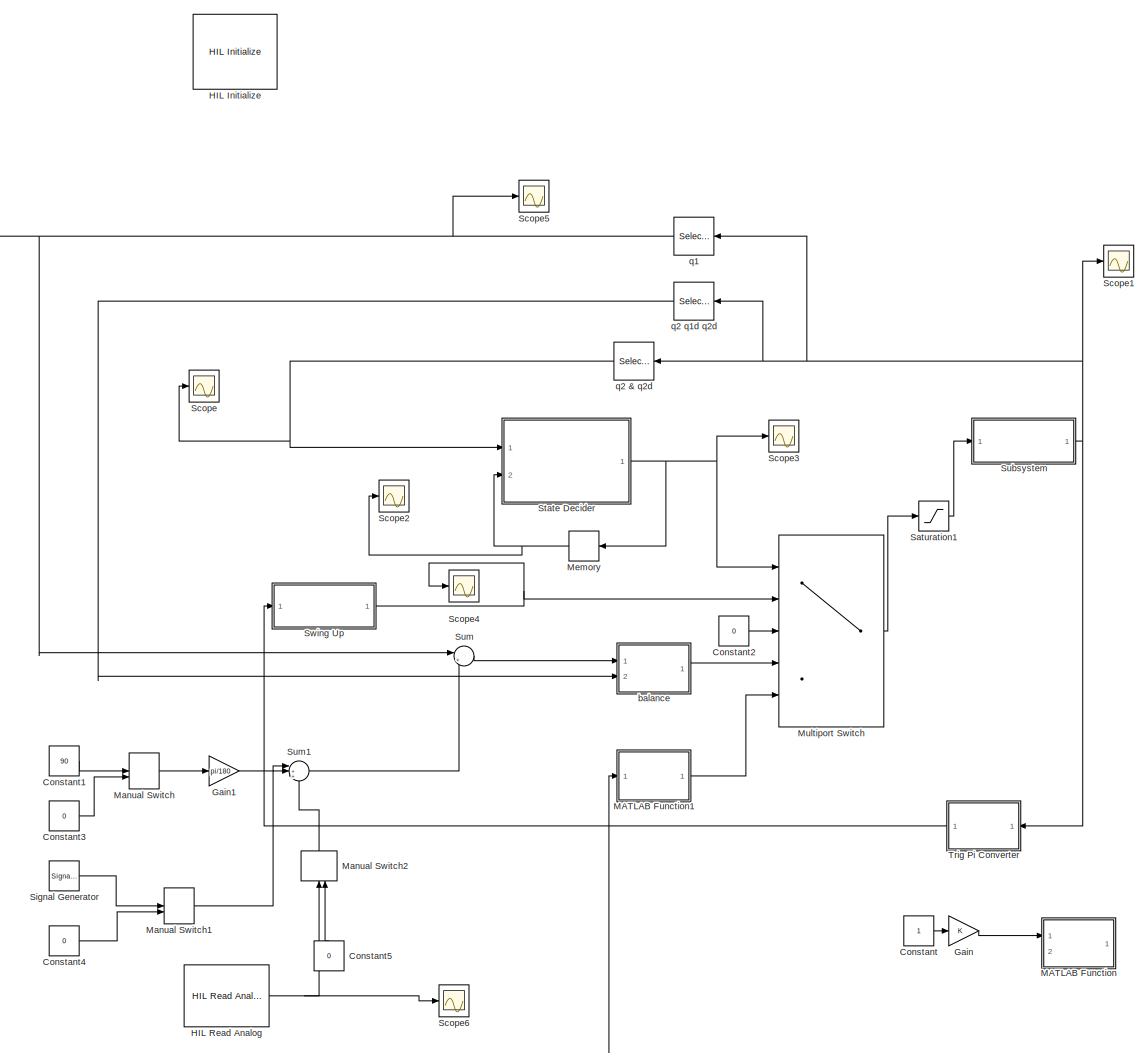
[diagram: root canvas - part 1/1, most of the canvas]
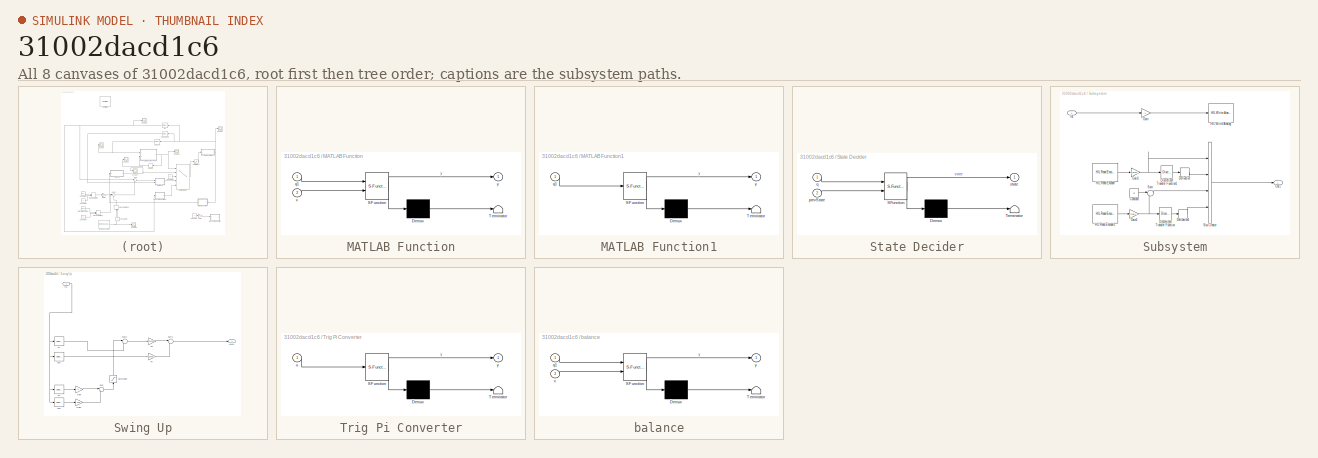
[diagram: thumbnail index - all 8 canvases of the model, root first then tree order]
MODEL slx_31002dacd1c6
KIND model
BLOCK [Constant] Constant
  Commented = on
BLOCK [Constant] Constant1
  Value = 90
BLOCK [Constant] Constant2
  Value = 0
BLOCK [Constant] Constant3
  Value = 0
BLOCK [Constant] Constant4
  Value = 0
BLOCK [Constant] Constant5
  Value = 0
BLOCK [Gain] Gain
  Commented = on
  OutDataTypeStr = Inherit: Inherit via internal rule
  ParamDataTypeStr = Inherit: Inherit via internal rule
  SaturateOnIntegerOverflow = off
BLOCK [Gain] Gain1
  Gain = pi/180
  OutDataTypeStr = Inherit: Inherit via internal rule
  ParamDataTypeStr = Inherit: Inherit via internal rule
  SaturateOnIntegerOverflow = off
BLOCK [Reference] HIL Initialize  REF=quarc_library/Data Acquisition/Generic/Configuration/HIL Initialize
  AttributesFormatString = %<object_name> (%<board_type>-%<board_number>)
  Ports = []
  Priority = -99
  SourceBlock = quarc_library/Data Acquisition/Generic/Configuration/HIL Initialize
  SourceType = HIL Initialize
  UserDataPersistent = on
  active = off
  analog_input_channels = [0:1]
  analog_input_maximums = 10
  analog_input_minimums = -10
  analog_output_channels = [0:1]
  analog_output_maximums = 10
  analog_output_minimums = -10
  board_number = 0
  board_options = d0=digital;d1=digital;led=auto;update_rate=normal;decimation=1
  board_type = q2_usb
  clock_modes = []
  digital_input_channels = []
  digital_output_channels = []
  digital_output_configuration = []
  encoder_channels = [0:1]
  encoder_filter_frequency = []
  exclusive = off
  final_analog_outputs = [0]
  final_digital_outputs = [1]
  final_other_outputs = []
  final_pwm_outputs = [0]
  hardware_clocks = [0]
  initial_analog_outputs = [0]
  initial_clock_frequencies = []
  initial_digital_outputs = [1]
  initial_encoder_counts = [0]
  initial_other_outputs = []
  initial_pwm_outputs = [0]
  object_name = HIL-1
  other_output_channels = []
  pwm_alignment = []
  pwm_channels = []
  pwm_configuration = []
  pwm_frequency = 1/0.020
  pwm_leading_deadband = []
  pwm_modes = [0]
  pwm_polarity = []
  pwm_trailing_deadband = []
  quadrature = [4]
  set_analog_input_params_at_start = on
  set_analog_input_params_at_switch_in = off
  set_analog_output_params_at_start = on
  set_analog_output_params_at_switch_in = off
  set_analog_outputs_at_start = on
  set_analog_outputs_at_switch_in = off
  set_analog_outputs_at_switch_out = off
  set_analog_outputs_at_terminate = on
  set_analog_outputs_on_watchdog = off
  set_clock_frequencies_at_start = off
  set_clock_frequencies_at_switch_in = off
  set_clock_params_at_start = off
  set_clock_params_at_switch_in = off
  set_digital_output_params_at_start = off
  set_digital_output_params_at_switch_in = off
  set_digital_outputs_at_start = on
  set_digital_outputs_at_switch_in = off
  set_digital_outputs_at_switch_out = off
  set_digital_outputs_at_terminate = on
  set_digital_outputs_on_watchdog = off
  set_encoder_counts_at_start = on
  set_encoder_counts_at_switch_in = off
  set_encoder_params_at_start = on
  set_encoder_params_at_switch_in = off
  set_other_outputs_at_start = off
  set_other_outputs_at_switch_in = off
  set_other_outputs_at_switch_out = off
  set_other_outputs_at_terminate = off
  set_other_outputs_on_watchdog = off
  set_pwm_outputs_at_start = on
  set_pwm_outputs_at_switch_in = off
  set_pwm_outputs_at_switch_out = off
  set_pwm_outputs_at_terminate = on
  set_pwm_outputs_on_watchdog = off
  set_pwm_params_at_start = on
  set_pwm_params_at_switch_in = off
  watchdog_analog_outputs = 0
  watchdog_digital_outputs = [1]
  watchdog_other_outputs = []
  watchdog_pwm_outputs = [0]
BLOCK [Reference] HIL Read Analog  REF=quarc_library/Data Acquisition/Generic/Immediate I//O/HIL Read Analog
  AttributesFormatString = (%<object_name>)
  Ports = [0, 1]
  SourceBlock = quarc_library/Data Acquisition/Generic/Immediate I//O/HIL Read Analog
  SourceType = HIL Read Analog
  UserDataPersistent = on
  active = on
  channels = 0
  object_name = HIL-1
  sample_time = qc_get_step_size
  vector_output = off
BLOCK [SubSystem] MATLAB Function
  Commented = on
  ErrorFcn = Stateflow.Translate.translate
  FunctionWithSeparateData = off
  MaskHideContents = off
  MinAlgLoopOccurrences = off
  Opaque = off
  PermitHierarchicalResolution = ExplicitOnly
  Ports = [2, 1]
  PropExecContextOutsideSubsystem = off
  RTWSystemCode = Auto
  RequestExecContextInheritance = off
  SFBlockType = MATLAB Function
  TreatAsAtomicUnit = on
BLOCK [Demux] MATLAB Function/ Demux 
  Outputs = 1
  Ports = [1, 1]
BLOCK [S-Function] MATLAB Function/ SFunction 
  EnableBusSupport = on
  FunctionName = sf_sfun
  PortCounts = [2 2]
  Ports = [2, 2]
  Tag = Stateflow S-Function balanceActual 3
BLOCK [Terminator] MATLAB Function/ Terminator 
BLOCK [Inport] MATLAB Function/q1
  IconDisplay = Port number
BLOCK [Inport] MATLAB Function/x
  IconDisplay = Port number
  Port = 2
BLOCK [Outport] MATLAB Function/y
  IconDisplay = Port number
BLOCK [SubSystem] MATLAB Function1
  ErrorFcn = Stateflow.Translate.translate
  FunctionWithSeparateData = off
  MaskHideContents = off
  MinAlgLoopOccurrences = off
  Opaque = off
  PermitHierarchicalResolution = ExplicitOnly
  Ports = [1, 1]
  PropExecContextOutsideSubsystem = off
  RTWSystemCode = Auto
  RequestExecContextInheritance = off
  SFBlockType = MATLAB Function
  TreatAsAtomicUnit = on
BLOCK [Demux] MATLAB Function1/ Demux 
  Outputs = 1
  Ports = [1, 1]
BLOCK [S-Function] MATLAB Function1/ SFunction 
  EnableBusSupport = on
  FunctionName = sf_sfun
  PortCounts = [1 2]
  Ports = [1, 2]
  Tag = Stateflow S-Function balanceActual 5
BLOCK [Terminator] MATLAB Function1/ Terminator 
BLOCK [Inport] MATLAB Function1/q1
  IconDisplay = Port number
BLOCK [Outport] MATLAB Function1/y
  IconDisplay = Port number
BLOCK [ManualSwitch] Manual Switch
  CurrentSetting = 0
BLOCK [ManualSwitch] Manual Switch1
  CurrentSetting = 0
BLOCK [ManualSwitch] Manual Switch2
  CurrentSetting = 0
BLOCK [Memory] Memory
  X0 = 1
BLOCK [MultiPortSwitch] Multiport Switch
  InputSameDT = off
  Inputs = 4
  Ports = [5, 1]
  SaturateOnIntegerOverflow = off
BLOCK [Saturate] Saturation1
  InputPortMap = u0
  LowerLimit = -10
  Ports = [1, 1]
  UpperLimit = 10
BLOCK [Scope] Scope
  DataFormat = StructureWithTime
  Floating = off
  NumInputPorts = 1
  Ports = [1]
  SampleTime = 0
  SaveName = ScopeData1
  ShowLegends = off
  YMax = 9.5
  YMin = -0.5
BLOCK [Scope] Scope1
  DataFormat = StructureWithTime
  Floating = off
  NumInputPorts = 1
  Ports = [1]
  SampleTime = 0
  ShowLegends = off
  YMax = 0.7
  YMin = -0.6
BLOCK [Scope] Scope2
  DataFormat = StructureWithTime
  Floating = off
  MaxDataPoints = 10000
  NumInputPorts = 1
  Ports = [1]
  SampleTime = 0
  SaveName = ScopeData2
  ShowLegends = off
  ZoomMode = yonly
BLOCK [Scope] Scope3
  DataFormat = StructureWithTime
  Floating = off
  MaxDataPoints = 10000
  NumInputPorts = 1
  Ports = [1]
  SampleTime = 0
  SaveName = ScopeData3
  ShowLegends = off
  ZoomMode = yonly
BLOCK [Scope] Scope4
  DataFormat = StructureWithTime
  Floating = off
  MaxDataPoints = 10000
  NumInputPorts = 1
  Ports = [1]
  SampleTime = 0
  SaveName = ScopeData4
  ShowLegends = off
  ZoomMode = yonly
BLOCK [Scope] Scope5
  DataFormat = StructureWithTime
  Floating = off
  NumInputPorts = 1
  Ports = [1]
  SampleTime = 0
  SaveName = ScopeData5
  ShowLegends = off
  YMax = 9.5
  YMin = -0.5
BLOCK [Scope] Scope6
  DataFormat = StructureWithTime
  Floating = off
  NumInputPorts = 1
  Ports = [1]
  SampleTime = 0
  SaveName = ScopeData6
  ShowLegends = off
BLOCK [SignalGenerator] Signal Generator
  Amplitude = 50
  Frequency = 0.1
  Ports = [0, 1]
BLOCK [SubSystem] State Decider
  ErrorFcn = Stateflow.Translate.translate
  FunctionWithSeparateData = off
  MaskHideContents = off
  MinAlgLoopOccurrences = off
  Opaque = off
  PermitHierarchicalResolution = ExplicitOnly
  Ports = [2, 1]
  PropExecContextOutsideSubsystem = off
  RTWSystemCode = Auto
  RequestExecContextInheritance = off
  SFBlockType = MATLAB Function
  TreatAsAtomicUnit = on
BLOCK [Demux] State Decider/ Demux 
  Outputs = 1
  Ports = [1, 1]
BLOCK [S-Function] State Decider/ SFunction 
  EnableBusSupport = on
  FunctionName = sf_sfun
  PortCounts = [2 2]
  Ports = [2, 2]
  Tag = Stateflow S-Function balanceActual 2
BLOCK [Terminator] State Decider/ Terminator 
BLOCK [Inport] State Decider/prevState
  IconDisplay = Port number
  Port = 2
BLOCK [Inport] State Decider/q
  IconDisplay = Port number
BLOCK [Outport] State Decider/state
  IconDisplay = Port number
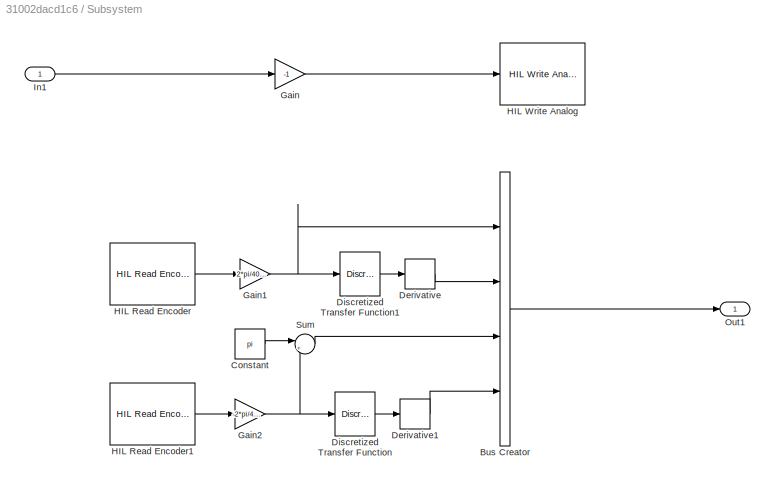
BLOCK [SubSystem] Subsystem
  FunctionWithSeparateData = off
  MaskHideContents = off
  MinAlgLoopOccurrences = off
  Opaque = off
  Ports = [1, 1]
  PropExecContextOutsideSubsystem = off
  RTWSystemCode = Auto
  RequestExecContextInheritance = off
BLOCK [BusCreator] Subsystem/Bus Creator
  DisplayOption = bar
  Ports = [4, 1]
BLOCK [Constant] Subsystem/Constant
  Value = pi
BLOCK [Derivative] Subsystem/Derivative
BLOCK [Derivative] Subsystem/Derivative1
BLOCK [Reference] Subsystem/Discretized Transfer Function  REF=quarc_library/Discrete/Discretized
Transfer Function
  Ports = [1, 1]
  SourceBlock = quarc_library/Discrete/Discretized\nTransfer Function
  SourceType = Discretized Transfer Function
  Ts = qc_get_step_size
  den = [1 100]
  method = tustin
  num = 100
BLOCK [Reference] Subsystem/Discretized Transfer Function1  REF=quarc_library/Discrete/Discretized
Transfer Function
  Ports = [1, 1]
  SourceBlock = quarc_library/Discrete/Discretized\nTransfer Function
  SourceType = Discretized Transfer Function
  Ts = qc_get_step_size
  den = [1 100]
  method = tustin
  num = 100
BLOCK [Gain] Subsystem/Gain
  Gain = -1
  OutDataTypeStr = Inherit: Inherit via internal rule
  ParamDataTypeStr = Inherit: Inherit via internal rule
  SaturateOnIntegerOverflow = off
BLOCK [Gain] Subsystem/Gain1
  Gain = 2*pi/4096
  OutDataTypeStr = Inherit: Inherit via internal rule
  ParamDataTypeStr = Inherit: Inherit via internal rule
  ParamMax = [512]
  ParamMin = [-512]
  SaturateOnIntegerOverflow = off
BLOCK [Gain] Subsystem/Gain2
  Gain = -2*pi/4096
  OutDataTypeStr = Inherit: Inherit via internal rule
  ParamDataTypeStr = Inherit: Inherit via internal rule
  ParamMax = [512]
  ParamMin = [-512]
  SaturateOnIntegerOverflow = off
BLOCK [Reference] Subsystem/HIL Read Encoder  REF=quarc_library/Data Acquisition/Generic/Immediate I//O/HIL Read Encoder
  AttributesFormatString = (%<object_name>)
  Ports = [0, 1]
  SourceBlock = quarc_library/Data Acquisition/Generic/Immediate I//O/HIL Read Encoder
  SourceType = HIL Read Encoder
  UserDataPersistent = on
  active = on
  channels = 0
  data_type = double
  data_type_mode = Inherit via back propagation
  object_name = HIL-1
  sample_time = qc_get_step_size
  vector_output = off
BLOCK [Reference] Subsystem/HIL Read Encoder1  REF=quarc_library/Data Acquisition/Generic/Immediate I//O/HIL Read Encoder
  AttributesFormatString = (%<object_name>)
  Ports = [0, 1]
  SourceBlock = quarc_library/Data Acquisition/Generic/Immediate I//O/HIL Read Encoder
  SourceType = HIL Read Encoder
  UserDataPersistent = on
  active = on
  channels = 1
  data_type = double
  data_type_mode = Inherit via back propagation
  object_name = HIL-1
  sample_time = qc_get_step_size
  vector_output = off
BLOCK [Reference] Subsystem/HIL Write Analog  REF=quarc_library/Data Acquisition/Generic/Immediate I//O/HIL Write Analog
  AttributesFormatString = (%<object_name>)
  Ports = [1]
  SourceBlock = quarc_library/Data Acquisition/Generic/Immediate I//O/HIL Write Analog
  SourceType = HIL Write Analog
  UserDataPersistent = on
  active = off
  channels = 0
  object_name = HIL-1
  sample_time = -1
  vector_input = off
BLOCK [Inport] Subsystem/In1
  IconDisplay = Port number
BLOCK [Outport] Subsystem/Out1
  IconDisplay = Port number
BLOCK [Sum] Subsystem/Sum
  IconShape = round
  InputSameDT = off
  Inputs = |++
  OutDataTypeStr = Inherit: Inherit via internal rule
  Ports = [2, 1]
  SaturateOnIntegerOverflow = off
BLOCK [Sum] Sum
  IconShape = round
  InputSameDT = off
  Inputs = |+-
  OutDataTypeStr = Inherit: Inherit via internal rule
  Ports = [2, 1]
  SaturateOnIntegerOverflow = off
BLOCK [Sum] Sum1
  IconShape = round
  InputSameDT = off
  Inputs = |+++
  OutDataTypeStr = Inherit: Inherit via internal rule
  Ports = [3, 1]
  SaturateOnIntegerOverflow = off
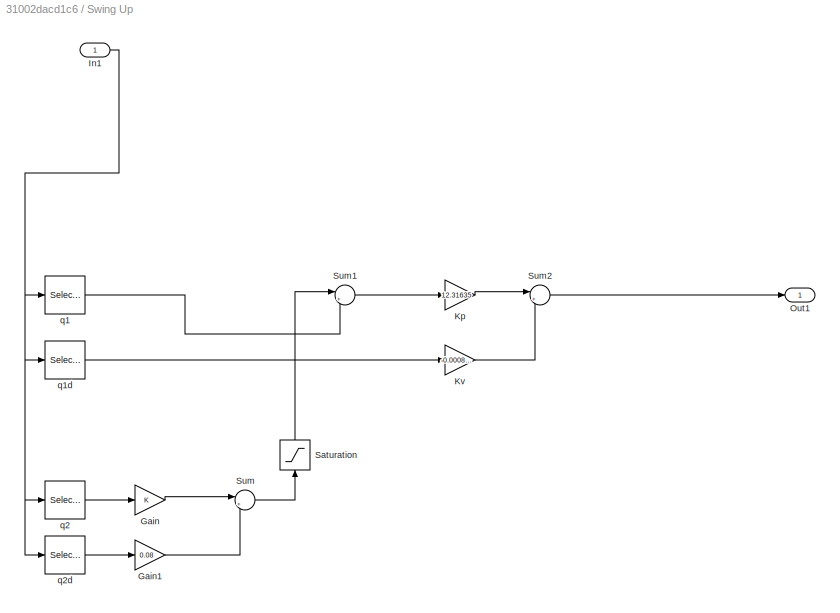
BLOCK [SubSystem] Swing Up
  FunctionWithSeparateData = off
  MaskHideContents = off
  MinAlgLoopOccurrences = off
  Opaque = off
  Ports = [1, 1]
  PropExecContextOutsideSubsystem = off
  RTWSystemCode = Auto
  RequestExecContextInheritance = off
BLOCK [Gain] Swing Up/Gain
  OutDataTypeStr = Inherit: Inherit via internal rule
  ParamDataTypeStr = Inherit: Inherit via internal rule
  SaturateOnIntegerOverflow = off
BLOCK [Gain] Swing Up/Gain1
  Gain = 0.08
  OutDataTypeStr = Inherit: Inherit via internal rule
  ParamDataTypeStr = Inherit: Inherit via internal rule
  SaturateOnIntegerOverflow = off
BLOCK [Inport] Swing Up/In1
  IconDisplay = Port number
BLOCK [Gain] Swing Up/Kp
  Gain = 12.31635
  OutDataTypeStr = Inherit: Inherit via internal rule
  ParamDataTypeStr = Inherit: Inherit via internal rule
  SaturateOnIntegerOverflow = off
BLOCK [Gain] Swing Up/Kv
  Gain = -0.0008368
  OutDataTypeStr = Inherit: Inherit via internal rule
  ParamDataTypeStr = Inherit: Inherit via internal rule
  SaturateOnIntegerOverflow = off
BLOCK [Outport] Swing Up/Out1
  IconDisplay = Port number
BLOCK [Saturate] Swing Up/Saturation
  InputPortMap = u0
  Ports = [1, 1]
BLOCK [Sum] Swing Up/Sum
  IconShape = round
  InputSameDT = off
  Inputs = |++
  OutDataTypeStr = Inherit: Inherit via internal rule
  Ports = [2, 1]
  SaturateOnIntegerOverflow = off
BLOCK [Sum] Swing Up/Sum1
  IconShape = round
  InputSameDT = off
  Inputs = |+-
  OutDataTypeStr = Inherit: Inherit via internal rule
  Ports = [2, 1]
  SaturateOnIntegerOverflow = off
BLOCK [Sum] Swing Up/Sum2
  IconShape = round
  InputSameDT = off
  Inputs = |+-
  OutDataTypeStr = Inherit: Inherit via internal rule
  Ports = [2, 1]
  SaturateOnIntegerOverflow = off
BLOCK [Selector] Swing Up/q1
  IndexOptions = Index vector (dialog)
  Indices = [1]
  InputPortWidth = 4
  OutputSizes = 1
  Ports = [1, 1]
BLOCK [Selector] Swing Up/q1d
  IndexOptions = Index vector (dialog)
  Indices = [2]
  InputPortWidth = 4
  OutputSizes = 1
  Ports = [1, 1]
BLOCK [Selector] Swing Up/q2
  IndexOptions = Index vector (dialog)
  Indices = [3]
  InputPortWidth = 4
  OutputSizes = 1
  Ports = [1, 1]
BLOCK [Selector] Swing Up/q2d
  IndexOptions = Index vector (dialog)
  Indices = [4]
  InputPortWidth = 4
  OutputSizes = 1
  Ports = [1, 1]
BLOCK [SubSystem] Trig Pi Converter
  ErrorFcn = Stateflow.Translate.translate
  FunctionWithSeparateData = off
  MaskHideContents = off
  MinAlgLoopOccurrences = off
  Opaque = off
  PermitHierarchicalResolution = ExplicitOnly
  Ports = [1, 1]
  PropExecContextOutsideSubsystem = off
  RTWSystemCode = Auto
  RequestExecContextInheritance = off
  SFBlockType = MATLAB Function
  TreatAsAtomicUnit = on
BLOCK [Demux] Trig Pi Converter/ Demux 
  Outputs = 1
  Ports = [1, 1]
BLOCK [S-Function] Trig Pi Converter/ SFunction 
  EnableBusSupport = on
  FunctionName = sf_sfun
  PortCounts = [1 2]
  Ports = [1, 2]
  Tag = Stateflow S-Function balanceActual 1
BLOCK [Terminator] Trig Pi Converter/ Terminator 
BLOCK [Inport] Trig Pi Converter/u
  IconDisplay = Port number
BLOCK [Outport] Trig Pi Converter/y
  IconDisplay = Port number
BLOCK [SubSystem] balance
  ErrorFcn = Stateflow.Translate.translate
  FunctionWithSeparateData = off
  MaskHideContents = off
  MinAlgLoopOccurrences = off
  Opaque = off
  PermitHierarchicalResolution = ExplicitOnly
  Ports = [2, 1]
  PropExecContextOutsideSubsystem = off
  RTWSystemCode = Auto
  RequestExecContextInheritance = off
  SFBlockType = MATLAB Function
  TreatAsAtomicUnit = on
BLOCK [Demux] balance/ Demux 
  Outputs = 1
  Ports = [1, 1]
BLOCK [S-Function] balance/ SFunction 
  EnableBusSupport = on
  FunctionName = sf_sfun
  PortCounts = [2 2]
  Ports = [2, 2]
  Tag = Stateflow S-Function balanceActual 4
BLOCK [Terminator] balance/ Terminator 
BLOCK [Inport] balance/q1
  IconDisplay = Port number
BLOCK [Inport] balance/x
  IconDisplay = Port number
  Port = 2
BLOCK [Outport] balance/y
  IconDisplay = Port number
BLOCK [Selector] q1
  IndexOptions = Index vector (dialog)
  Indices = [1]
  InputPortWidth = 4
  OutputSizes = 1
  Ports = [1, 1]
BLOCK [Selector] q2 & q2d
  IndexOptions = Index vector (dialog)
  Indices = [1 3 4]
  InputPortWidth = 4
  OutputSizes = 1
  Ports = [1, 1]
BLOCK [Selector] q2 q1d q2d
  IndexOptions = Index vector (dialog)
  Indices = [2 3 4]
  InputPortWidth = 4
  OutputSizes = 1
  Ports = [1, 1]
LINE Constant1:1 -> Manual Switch:1
LINE Constant2:1 -> Multiport Switch:3
LINE Constant3:1 -> Manual Switch:2
LINE Constant4:1 -> Manual Switch1:2
LINE Constant5:1 -> Manual Switch2:2
LINE Constant:1 -> Gain:1
LINE Gain1:1 -> Sum1:1
LINE Gain:1 -> MATLAB Function:1
NET HIL Read Analog:1 -> Manual Switch2:1, Scope6:1
LINE MATLAB Function1:1 -> Multiport Switch:5
LINE Manual Switch1:1 -> Sum1:2
LINE Manual Switch2:1 -> Sum1:3
LINE Manual Switch:1 -> Gain1:1
NET Memory:1 -> Scope2:1, State Decider:2
LINE Multiport Switch:1 -> Saturation1:1
LINE Saturation1:1 -> Subsystem:1
LINE Signal Generator:1 -> Manual Switch1:1
NET State Decider:1 -> Memory:1, Multiport Switch:1, Scope3:1
LINE Subsystem/Bus Creator:1 -> Subsystem/Out1:1
LINE Subsystem/Constant:1 -> Subsystem/Sum:1
LINE Subsystem/Derivative1:1 -> Subsystem/Bus Creator:4
LINE Subsystem/Derivative:1 -> Subsystem/Bus Creator:2
LINE Subsystem/Discretized Transfer Function1:1 -> Subsystem/Derivative:1
LINE Subsystem/Discretized Transfer Function:1 -> Subsystem/Derivative1:1
NET Subsystem/Gain1:1 -> Subsystem/Bus Creator:1, Subsystem/Discretized Transfer Function1:1
NET Subsystem/Gain2:1 -> Subsystem/Discretized Transfer Function:1, Subsystem/Sum:2
LINE Subsystem/Gain:1 -> Subsystem/HIL Write Analog:1
LINE Subsystem/HIL Read Encoder1:1 -> Subsystem/Gain2:1
LINE Subsystem/HIL Read Encoder:1 -> Subsystem/Gain1:1
LINE Subsystem/In1:1 -> Subsystem/Gain:1
LINE Subsystem/Sum:1 -> Subsystem/Bus Creator:3
NET Subsystem:1 -> Scope1:1, Trig Pi Converter:1, q1:1, q2 & q2d:1, q2 q1d q2d:1
LINE Sum1:1 -> Sum:2
LINE Sum:1 -> balance:1
LINE Swing Up/Gain1:1 -> Swing Up/Sum:2
LINE Swing Up/Gain:1 -> Swing Up/Sum:1
NET Swing Up/In1:1 -> Swing Up/q1:1, Swing Up/q1d:1, Swing Up/q2:1, Swing Up/q2d:1
LINE Swing Up/Kp:1 -> Swing Up/Sum2:1
LINE Swing Up/Kv:1 -> Swing Up/Sum2:2
LINE Swing Up/Saturation:1 -> Swing Up/Sum1:1
LINE Swing Up/Sum1:1 -> Swing Up/Kp:1
LINE Swing Up/Sum2:1 -> Swing Up/Out1:1
LINE Swing Up/Sum:1 -> Swing Up/Saturation:1
LINE Swing Up/q1:1 -> Swing Up/Sum1:2
LINE Swing Up/q1d:1 -> Swing Up/Kv:1
LINE Swing Up/q2:1 -> Swing Up/Gain:1
LINE Swing Up/q2d:1 -> Swing Up/Gain1:1
NET Swing Up:1 -> Multiport Switch:2, Scope4:1
LINE Trig Pi Converter:1 -> Swing Up:1
LINE balance:1 -> Multiport Switch:4
NET q1:1 -> MATLAB Function1:1, Scope5:1, Sum:1
NET q2 & q2d:1 -> Scope:1, State Decider:1
LINE q2 q1d q2d:1 -> balance:2
note: NET lines group one-source signal fan-out (src -> all destinations, sorted); 1:1 wires keep LINE
